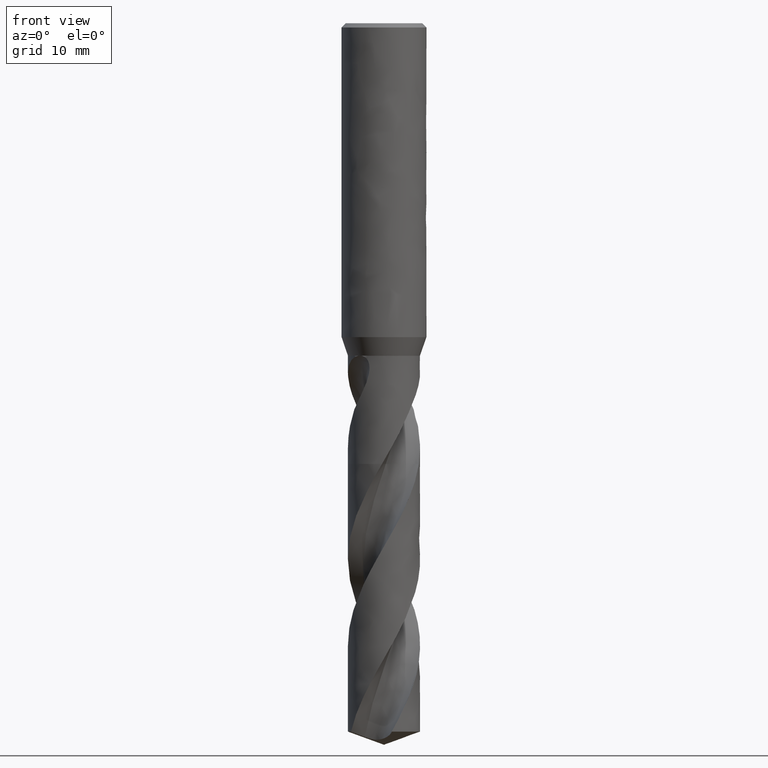
[diagram: clean part render]
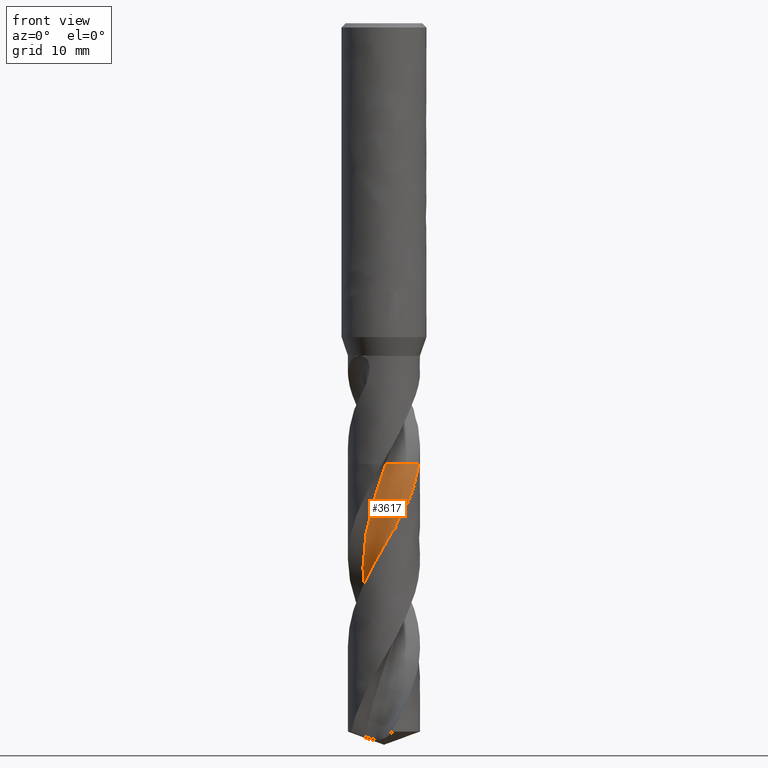
[diagram: same view with one face highlighted and labeled with its STEP entity id]
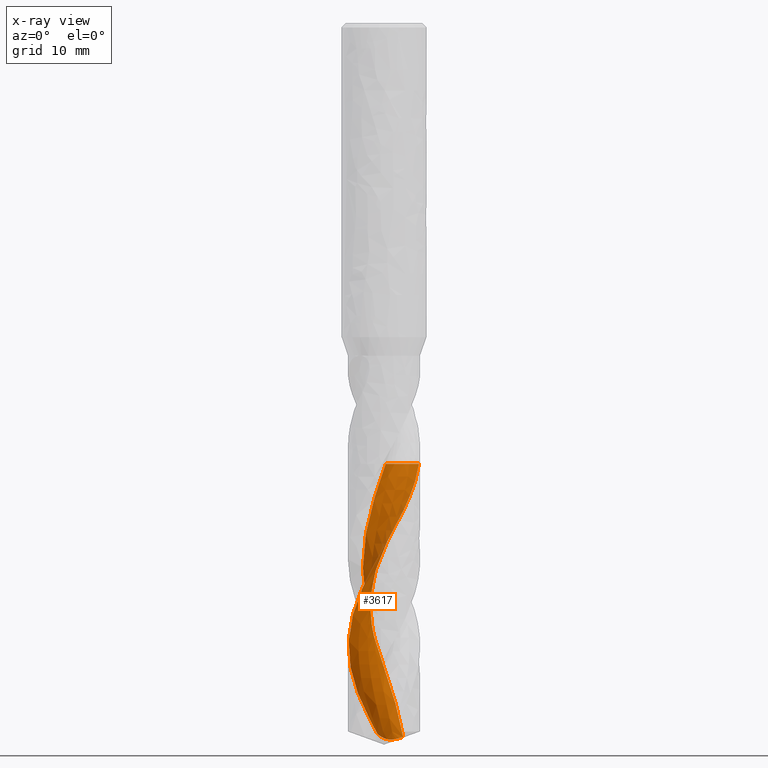
[diagram: x-ray of the same camera — body ghosted, the highlighted face saturated]
A machine part, front view. The second image highlights one B-rep face of the part: STEP entity #3617.
The next image is the same camera in x-ray: the body ghosted, the highlighted face saturated — about 0% of this face is hidden behind the body in this view.
In plain terms, the highlighted face is a freeform B-spline surface patch.
Its self-contained STEP definition (entity closure, byte-faithful):
#2025 = VERTEX_POINT('', #2026);
#2026 = CARTESIAN_POINT('', (0.257106836746543, -3.04252204616227, -62.3));
#2032 = EDGE_CURVE('', #2025, #2033, #2035, .T.);
#2033 = VERTEX_POINT('', #2034);
#2034 = CARTESIAN_POINT('', (4.93343042311955, -1.29277386276117, -62.3));
#2035 = B_SPLINE_CURVE_WITH_KNOTS('', 3, (#2036, #2037, #2038, #2039, #2040, #2041, #2042, #2043, #2044, #2045, #2046, #2047, #2048, #2049, #2050, #2051, #2052, #2053, #2054, #2055, #2056, #2057, #2058, #2059, #2060, #2061, #2062, #2063, #2064, #2065, #2066, #2067, #2068, #2069, #2070, #2071, #2072, #2073, #2074, #2075, #2076, #2077, #2078, #2079, #2080, #2081, #2082, #2083, #2084, #2085, #2086, #2087, #2088, #2089, #2090, #2091, #2092, #2093, #2094, #2095, #2096, #2097, #2098, #2099, #2100, #2101, #2102), .UNSPECIFIED., .F., .U., (4, 3, 3, 3, 3, 3, 3, 3, 3, 3, 3, 3, 3, 3, 3, 3, 3, 3, 3, 3, 3, 3, 4), (0., 0.29734054172853, 0.594310962744745, 0.89092039328541, 1.18717597400073, 1.48308300696472, 1.77864506597677, 2.07386407108344, 2.36874033060282, 2.66327255253617, 2.85970218875943, 2.91802373459071, 2.95693453692255, 3.25424925337456, 3.55119454547453, 3.84777940066535, 4.14401082863885, 4.43989400934541, 4.73543240069405, 5.03062781074815, 5.32548043759606, 5.61998887869164, 5.83731489464803), .UNSPECIFIED.);
#2036 = CARTESIAN_POINT('', (0.257106836746543, -3.04252204616227, -62.3));
#2037 = CARTESIAN_POINT('', (0.282455349133685, -2.94670481619161, -62.3));
#2038 = CARTESIAN_POINT('', (0.312499809202888, -2.85200912345213, -62.3));
#2039 = CARTESIAN_POINT('', (0.347027850009597, -2.75910431713114, -62.3));
#2040 = CARTESIAN_POINT('', (0.381512911332298, -2.66631515596534, -62.3));
#2041 = CARTESIAN_POINT('', (0.420551471555258, -2.57509420010253, -62.3));
#2042 = CARTESIAN_POINT('', (0.463868274961171, -2.48608463641987, -62.3));
#2043 = CARTESIAN_POINT('', (0.507132423448094, -2.39718327073422, -62.3));
#2044 = CARTESIAN_POINT('', (0.554765893278711, -2.31027934986924, -62.3));
#2045 = CARTESIAN_POINT('', (0.606433641756792, -2.22598413569739, -62.3));
#2046 = CARTESIAN_POINT('', (0.658039751521156, -2.14178948423103, -62.3));
#2047 = CARTESIAN_POINT('', (0.713791275437525, -2.06000025682434, -62.3));
#2048 = CARTESIAN_POINT('', (0.773297003756185, -1.98119037040254, -62.3));
#2049 = CARTESIAN_POINT('', (0.832732722970725, -1.90247320462629, -62.3));
#2050 = CARTESIAN_POINT('', (0.896052571961794, -1.82654456302001, -62.3));
#2051 = CARTESIAN_POINT('', (0.962813276909087, -1.7539359878974, -62.3));
#2052 = CARTESIAN_POINT('', (1.02949615097825, -1.68141206120932, -62.3));
#2053 = CARTESIAN_POINT('', (1.09976717682972, -1.61203150736291, -62.3));
#2054 = CARTESIAN_POINT('', (1.17313556292305, -1.54627889860522, -62.3));
#2055 = CARTESIAN_POINT('', (1.24641879156598, -1.48060260779341, -62.3));
#2056 = CARTESIAN_POINT('', (1.32296248970853, -1.41839319241068, -62.3));
#2057 = CARTESIAN_POINT('', (1.40223329392419, -1.36008413330205, -62.3));
#2058 = CARTESIAN_POINT('', (1.48141206572365, -1.30184277028467, -62.3));
#2059 = CARTESIAN_POINT('', (1.5634951873458, -1.2473576505628, -62.3));
#2060 = CARTESIAN_POINT('', (1.6479120211653, -1.19700755187685, -62.3));
#2061 = CARTESIAN_POINT('', (1.73223036430339, -1.14671619758231, -62.3));
#2062 = CARTESIAN_POINT('', (1.81907201391097, -1.1004338624495, -62.3));
#2063 = CARTESIAN_POINT('', (1.90783465679909, -1.05848154983327, -62.3));
#2064 = CARTESIAN_POINT('', (1.96703230090837, -1.03050268405133, -62.3));
#2065 = CARTESIAN_POINT('', (2.02715931807455, -1.00441132557336, -62.3));
#2066 = CARTESIAN_POINT('', (2.08803004308001, -0.980288041471816, -62.3));
#2067 = CARTESIAN_POINT('', (2.10610305307201, -0.973125643544601, -62.3));
#2068 = CARTESIAN_POINT('', (2.12424514218854, -0.966135158626277, -62.3));
#2069 = CARTESIAN_POINT('', (2.14245136848352, -0.959318490940745, -62.3));
#2070 = CARTESIAN_POINT('', (2.15459814653056, -0.954770566068505, -62.3));
#2071 = CARTESIAN_POINT('', (2.16677408561287, -0.950299778090999, -62.3));
#2072 = CARTESIAN_POINT('', (2.17897770930371, -0.945906669125832, -62.3));
#2073 = CARTESIAN_POINT('', (2.27222474354336, -0.912339231086841, -62.3));
#2074 = CARTESIAN_POINT('', (2.36721612646065, -0.883272781772682, -62.3));
#2075 = CARTESIAN_POINT('', (2.46328053522868, -0.858912739509958, -62.3));
#2076 = CARTESIAN_POINT('', (2.55922558047382, -0.834582965486007, -62.3));
#2077 = CARTESIAN_POINT('', (2.65646657875675, -0.814890675235726, -62.3));
#2078 = CARTESIAN_POINT('', (2.75431801250251, -0.799974693033812, -62.3));
#2079 = CARTESIAN_POINT('', (2.85205067262473, -0.785076816087866, -62.3));
#2080 = CARTESIAN_POINT('', (2.9506215255196, -0.774908687459045, -62.3));
#2081 = CARTESIAN_POINT('', (3.04933736152406, -0.769541815557939, -62.3));
#2082 = CARTESIAN_POINT('', (3.14793556217858, -0.764181339123657, -62.3));
#2083 = CARTESIAN_POINT('', (3.24690911937936, -0.763598113075525, -62.3));
#2084 = CARTESIAN_POINT('', (3.34556364639373, -0.767796229258291, -62.3));
#2085 = CARTESIAN_POINT('', (3.44410219594535, -0.771989410169681, -62.3));
#2086 = CARTESIAN_POINT('', (3.54255250401705, -0.780962460817529, -62.3));
#2087 = CARTESIAN_POINT('', (3.64022547513594, -0.794652575013611, -62.3));
#2088 = CARTESIAN_POINT('', (3.73778462903507, -0.808326736272888, -62.3));
#2089 = CARTESIAN_POINT('', (3.83479548098508, -0.826738796225771, -62.3));
#2090 = CARTESIAN_POINT('', (3.93058058970411, -0.849760180705084, -62.3));
#2091 = CARTESIAN_POINT('', (4.02625453689033, -0.872754848167312, -62.3));
#2092 = CARTESIAN_POINT('', (4.12092790376476, -0.900401554595998, -62.3));
#2093 = CARTESIAN_POINT('', (4.21394110298851, -0.93250768597387, -62.3));
#2094 = CARTESIAN_POINT('', (4.30684629456186, -0.964576535462263, -62.3));
#2095 = CARTESIAN_POINT('', (4.39831055997301, -1.00116877948838, -62.3));
#2096 = CARTESIAN_POINT('', (4.4876981461084, -1.04203007136319, -62.3));
#2097 = CARTESIAN_POINT('', (4.57698138881666, -1.08284366525873, -62.3));
#2098 = CARTESIAN_POINT('', (4.66439930997172, -1.12801071992075, -62.3));
#2099 = CARTESIAN_POINT('', (4.74934569723577, -1.17721801781404, -62.3));
#2100 = CARTESIAN_POINT('', (4.81203001231111, -1.21352945923604, -62.3));
#2101 = CARTESIAN_POINT('', (4.87348164675334, -1.25210460721349, -62.3));
#2102 = CARTESIAN_POINT('', (4.93343042311953, -1.2927738627612, -62.3));
#2369 = VERTEX_POINT('', #2370);
#2370 = CARTESIAN_POINT('', (2.71820586783196, 1.39123076832966, -100.888598775299));
#2401 = EDGE_CURVE('', #2369, #2025, #2402, .T.);
#2402 = (
   BOUNDED_CURVE ()
   B_SPLINE_CURVE (3, (#2403, #2404, #2405, #2406, #2407, #2408, #2409, #2410, #2411, #2412, #2413, #2414, #2415, #2416, #2417, #2418, #2419, #2420, #2421, #2422, #2423, #2424, #2425, #2426, #2427, #2428, #2429, #2430, #2431, #2432, #2433, #2434, #2435, #2436, #2437, #2438, #2439, #2440, #2441, #2442, #2443, #2444, #2445, #2446), .UNSPECIFIED., .F., .U.)
   B_SPLINE_CURVE_WITH_KNOTS ((4, 1, 1, 1, 1, 1, 1, 1, 1, 1, 1, 1, 1, 1, 1, 1, 1, 1, 1, 1, 1, 1, 1, 1, 1, 1, 1, 1, 1, 1, 1, 1, 1, 1, 1, 1, 1, 1, 1, 1, 1, 4), (1.16140122470107, 1.89896551724138, 2.84844827586207, 3.79793103448276, 4.74741379310345, 5.69689655172414, 6.64637931034483, 7.59586206896552, 8.54534482758621, 9.4948275862069, 10.4443103448276, 11.3937931034483, 12.343275862069, 13.2927586206897, 14.2422413793103, 15.191724137931, 16.1412068965517, 17.0906896551724, 18.0401724137931, 18.9896551724138, 19.9391379310345, 20.8886206896552, 21.8381034482759, 22.7875862068966, 23.7370689655172, 24.6865517241379, 25.6360344827586, 26.5855172413793, 27.535, 28.4844827586207, 29.4339655172414, 30.3834482758621, 31.3329310344828, 32.2824137931035, 33.2318965517241, 34.1813793103448, 35.1308620689655, 36.0803448275862, 37.0298275862069, 37.9793103448276, 38.9287931034483, 39.75), .UNSPECIFIED.)
   CURVE ()
   GEOMETRIC_REPRESENTATION_ITEM ()
   RATIONAL_B_SPLINE_CURVE ((1., 1., 1., 1., 1., 1., 1., 1., 1., 1., 1., 1., 1., 1., 1., 1., 1., 1., 1., 1., 1., 1., 1., 1., 1., 1., 1., 1., 1., 1., 1., 1., 1., 1., 1., 1., 1., 1., 1., 1., 1., 1., 1., 1.))
   REPRESENTATION_ITEM ('')
);
#2403 = CARTESIAN_POINT('', (2.71820586783196, 1.39123076832966, -100.888598775299));
#2404 = CARTESIAN_POINT('', (2.67800368655246, 1.46514663058447, -100.642744011119));
#2405 = CARTESIAN_POINT('', (2.57924375892695, 1.63028681439311, -100.080394994065));
#2406 = CARTESIAN_POINT('', (2.40177920092845, 1.87239547549262, -99.2015517241379));
#2407 = CARTESIAN_POINT('', (2.18418617659598, 2.11179588618221, -98.2520689655172));
#2408 = CARTESIAN_POINT('', (1.94322415103394, 2.32652181599723, -97.3025862068965));
#2409 = CARTESIAN_POINT('', (1.68163054986733, 2.5143463363471, -96.3531034482759));
#2410 = CARTESIAN_POINT('', (1.40234772836616, 2.67333854485627, -95.4036206896552));
#2411 = CARTESIAN_POINT('', (1.1084934409964, 2.80188332706552, -94.4541379310345));
#2412 = CARTESIAN_POINT('', (0.803327153716365, 2.89869623241293, -93.5046551724138));
#2413 = CARTESIAN_POINT('', (0.490215797153581, 2.96283537528058, -92.5551724137931));
#2414 = CARTESIAN_POINT('', (0.172598426826535, 2.99370972143241, -91.6056896551724));
#2415 = CARTESIAN_POINT('', (-0.146049627894983, 2.99108384550682, -90.6562068965517));
#2416 = CARTESIAN_POINT('', (-0.462252838866228, 2.95507909318309, -89.706724137931));
#2417 = CARTESIAN_POINT('', (-0.772571411640423, 2.88617116470714, -88.7572413793104));
#2418 = CARTESIAN_POINT('', (-1.07363673334712, 2.78518415620212, -87.8077586206897));
#2419 = CARTESIAN_POINT('', (-1.36218599456435, 2.65328113123384, -86.858275862069));
#2420 = CARTESIAN_POINT('', (-1.63509565452084, 2.4919513257862, -85.9087931034483));
#2421 = CARTESIAN_POINT('', (-1.88941343058823, 2.30299412061868, -84.9593103448276));
#2422 = CARTESIAN_POINT('', (-2.12238850786663, 2.08849994415288, -84.0098275862069));
#2423 = CARTESIAN_POINT('', (-2.3314996819376, 1.85082829675762, -83.0603448275862));
#2424 = CARTESIAN_POINT('', (-2.5144811675794, 1.59258311324994, -82.1108620689655));
#2425 = CARTESIAN_POINT('', (-2.66934582819677, 1.31658570443565, -81.1613793103448));
#2426 = CARTESIAN_POINT('', (-2.79440560474272, 1.02584554038767, -80.2118965517242));
#2427 = CARTESIAN_POINT('', (-2.88828894880416, 0.723529157737972, -79.2624137931035));
#2428 = CARTESIAN_POINT('', (-2.94995509208006, 0.412927490389304, -78.3129310344828));
#2429 = CARTESIAN_POINT('', (-2.97870501348361, 0.0974219376016614, -77.3634482758621));
#2430 = CARTESIAN_POINT('', (-2.97418899531812, -0.219550504739886, -76.4139655172414));
#2431 = CARTESIAN_POINT('', (-2.93641069117697, -0.534532714809717, -75.4644827586207));
#2432 = CARTESIAN_POINT('', (-2.86572766014901, -0.844083176437814, -74.515));
#2433 = CARTESIAN_POINT('', (-2.76284835434865, -1.1448116272889, -73.5655172413793));
#2434 = CARTESIAN_POINT('', (-2.62882557937912, -1.43341427915248, -72.6160344827586));
#2435 = CARTESIAN_POINT('', (-2.46504648019532, -1.70670826807482, -71.6665517241379));
#2436 = CARTESIAN_POINT('', (-2.27321913629262, -1.9616649996595, -70.7170689655173));
#2437 = CARTESIAN_POINT('', (-2.05535588519287, -2.1954420564562, -69.7675862068966));
#2438 = CARTESIAN_POINT('', (-1.81375351199637, -2.40541337233901, -68.8181034482759));
#2439 = CARTESIAN_POINT('', (-1.5509705180985, -2.58919729471313, -67.8686206896552));
#2440 = CARTESIAN_POINT('', (-1.26980154119252, -2.74468254022137, -66.9191379310345));
#2441 = CARTESIAN_POINT('', (-0.973249658448007, -2.87005069749879, -65.9696551724138));
#2442 = CARTESIAN_POINT('', (-0.664494968403497, -2.96379907324804, -65.0201724137931));
#2443 = CARTESIAN_POINT('', (-0.346866683593951, -3.02474859333156, -64.0706896551724));
#2444 = CARTESIAN_POINT('', (-0.03834225961307, -3.05086140602041, -63.1639655172414));
#2445 = CARTESIAN_POINT('', (0.163588209232107, -3.04805946740081, -62.5737356321839));
#2446 = CARTESIAN_POINT('', (0.257106836746543, -3.04252204616227, -62.3));
#3476 = EDGE_CURVE('', #2033, #3477, #3479, .T.);
#3477 = VERTEX_POINT('', #3478);
#3478 = CARTESIAN_POINT('', (4.38259217942669, -2.60823422813749, -64.7830305454495));
#3479 = B_SPLINE_CURVE_WITH_KNOTS('', 3, (#3480, #3481, #3482, #3483, #3484, #3485, #3486, #3487, #3488, #3489), .UNSPECIFIED., .F., .U., (4, 3, 3, 4), (6.15313403050177, 6.99093554378073, 7.9897139852568, 9.01862295335219), .UNSPECIFIED.);
#3480 = CARTESIAN_POINT('', (4.93343042311955, -1.29277386276117, -62.3));
#3481 = CARTESIAN_POINT('', (4.89807279944451, -1.4277041714194, -62.5419376016739));
#3482 = CARTESIAN_POINT('', (4.85717051336691, -1.56119811757835, -62.7839725517205));
#3483 = CARTESIAN_POINT('', (4.81088733681891, -1.69273832367423, -63.025933694467));
#3484 = CARTESIAN_POINT('', (4.75571121430482, -1.84955293901396, -63.314385755271));
#3485 = CARTESIAN_POINT('', (4.69284486821146, -2.00370485301787, -63.6029286116004));
#3486 = CARTESIAN_POINT('', (4.62263348857608, -2.15435828735457, -63.8913965029752));
#3487 = CARTESIAN_POINT('', (4.55030401572279, -2.30955654076733, -64.1885667142228));
#3488 = CARTESIAN_POINT('', (4.47013736388259, -2.46113285334384, -64.4858349681421));
#3489 = CARTESIAN_POINT('', (4.38259217942671, -2.60823422813745, -64.7830305454494));
#3617 = ADVANCED_FACE('', (#3618), #3801, .T.);
#3618 = FACE_OUTER_BOUND('', #3619, .T.);
#3619 = EDGE_LOOP('', (#3620, #3621, #3622, #3745, #3757, #3800));
#3620 = ORIENTED_EDGE('', *, *, #2032, .F.);
#3621 = ORIENTED_EDGE('', *, *, #2401, .F.);
#3622 = ORIENTED_EDGE('', *, *, #3623, .T.);
#3623 = EDGE_CURVE('', #2369, #3624, #3626, .T.);
#3624 = VERTEX_POINT('', #3625);
#3625 = CARTESIAN_POINT('', (-1.08917575655193, 4.98233842400731, -100.143751805242));
#3626 = B_SPLINE_CURVE_WITH_KNOTS('', 3, (#3627, #3628, #3629, #3630, #3631, #3632, #3633, #3634, #3635, #3636, #3637, #3638, #3639, #3640, #3641, #3642, #3643, #3644, #3645, #3646, #3647, #3648, #3649, #3650, #3651, #3652, #3653, #3654, #3655, #3656, #3657, #3658, #3659, #3660, #3661, #3662, #3663, #3664, #3665, #3666, #3667, #3668, #3669, #3670, #3671, #3672, #3673, #3674, #3675, #3676, #3677, #3678, #3679, #3680, #3681, #3682, #3683, #3684, #3685, #3686, #3687, #3688, #3689, #3690, #3691, #3692, #3693, #3694, #3695, #3696, #3697, #3698, #3699, #3700, #3701, #3702, #3703, #3704, #3705, #3706, #3707, #3708, #3709, #3710, #3711, #3712, #3713, #3714, #3715, #3716, #3717, #3718, #3719, #3720, #3721, #3722, #3723, #3724, #3725, #3726, #3727, #3728, #3729, #3730, #3731, #3732, #3733, #3734, #3735, #3736, #3737, #3738, #3739, #3740, #3741, #3742, #3743, #3744), .UNSPECIFIED., .F., .U., (4, 3, 3, 3, 3, 3, 3, 3, 3, 3, 3, 3, 3, 3, 3, 3, 3, 3, 3, 3, 3, 3, 3, 3, 3, 3, 3, 3, 3, 3, 3, 3, 3, 3, 3, 3, 3, 3, 3, 4), (0., 0.197306370533849, 0.394423993291476, 0.591284577874752, 0.722422164479544, 0.853452057676071, 0.984370018182084, 1.11518034835664, 1.24589873893394, 1.376553859752, 1.50718636764504, 1.63784435202514, 1.7685754697309, 1.89941778367478, 2.03039249273984, 2.16150121680052, 2.29272839484124, 2.42404711866026, 2.55542579202223, 2.68683356108203, 2.81824366471131, 2.94963484062096, 2.98857061384949, 3.12048463178685, 3.15945341035336, 3.18542764120954, 3.38428003435633, 3.5826649173692, 3.78066170837731, 3.97833639700477, 4.17574201147587, 4.37292035445424, 4.56990398827049, 4.76671805383818, 4.96338179224605, 5.15990976010026, 5.35631277476367, 5.55259863665361, 5.84619914615227, 6.08548079583742), .UNSPECIFIED.);
#3627 = CARTESIAN_POINT('', (2.71820586783196, 1.39123076832967, -100.888598775299));
#3628 = CARTESIAN_POINT('', (2.65804491942693, 1.37628190890162, -100.910569793716));
#3629 = CARTESIAN_POINT('', (2.59713375919126, 1.36381666360219, -100.932338706397));
#3630 = CARTESIAN_POINT('', (2.53573183960258, 1.35395796135124, -100.953743005549));
#3631 = CARTESIAN_POINT('', (2.47438865849127, 1.34410869015981, -100.975126828861));
#3632 = CARTESIAN_POINT('', (2.41245445699548, 1.33684529968187, -100.996182347865));
#3633 = CARTESIAN_POINT('', (2.35020709891111, 1.33226527895114, -101.0167140729));
#3634 = CARTESIAN_POINT('', (2.28804091036935, 1.32769123049296, -101.037219024899));
#3635 = CARTESIAN_POINT('', (2.22545389893127, 1.3257863193162, -101.057237528091));
#3636 = CARTESIAN_POINT('', (2.1627413301067, 1.32661462166762, -101.076536688701));
#3637 = CARTESIAN_POINT('', (2.12096570019658, 1.32716639068514, -101.089392717506));
#3638 = CARTESIAN_POINT('', (2.0790921219578, 1.32893033166776, -101.101941970002));
#3639 = CARTESIAN_POINT('', (2.0372123010788, 1.33191485552586, -101.114105785215));
#3640 = CARTESIAN_POINT('', (1.99536687293771, 1.33489692841964, -101.126259611205));
#3641 = CARTESIAN_POINT('', (1.95347944592679, 1.3391002808034, -101.138038937738));
#3642 = CARTESIAN_POINT('', (1.91164498109037, 1.34452282819898, -101.149358020422));
#3643 = CARTESIAN_POINT('', (1.8698462534746, 1.34994074336672, -101.160667433746));
#3644 = CARTESIAN_POINT('', (1.82806327116222, 1.35658075342116, -101.171527264507));
#3645 = CARTESIAN_POINT('', (1.78639405607998, 1.36442818440315, -101.181846402369));
#3646 = CARTESIAN_POINT('', (1.74475909811124, 1.37226916385171, -101.192157056656));
#3647 = CARTESIAN_POINT('', (1.7031993696939, 1.38132297593797, -101.201937125291));
#3648 = CARTESIAN_POINT('', (1.66181549859938, 1.39156013086586, -101.211093333448));
#3649 = CARTESIAN_POINT('', (1.62046071401841, 1.4017900906441, -101.220243106195));
#3650 = CARTESIAN_POINT('', (1.57924221441911, 1.41321160887116, -101.228778203828));
#3651 = CARTESIAN_POINT('', (1.53826225625986, 1.42577838329581, -101.23660813588));
#3652 = CARTESIAN_POINT('', (1.49730213304559, 1.43833907520377, -101.244434278123));
#3653 = CARTESIAN_POINT('', (1.45654043406463, 1.45205623330068, -101.251563083231));
#3654 = CARTESIAN_POINT('', (1.41607924692095, 1.46686557947521, -101.257913420084));
#3655 = CARTESIAN_POINT('', (1.3756250625322, 1.48167236254594, -101.264262657862));
#3656 = CARTESIAN_POINT('', (1.33543145089596, 1.49758551362077, -101.26983946748));
#3657 = CARTESIAN_POINT('', (1.29559752899514, 1.51452320063263, -101.274579520698));
#3658 = CARTESIAN_POINT('', (1.25575583851962, 1.53146419090163, -101.279320498341));
#3659 = CARTESIAN_POINT('', (1.21623499955588, 1.54944652567604, -101.283228657359));
#3660 = CARTESIAN_POINT('', (1.177127496459, 1.56837344443148, -101.286263334971));
#3661 = CARTESIAN_POINT('', (1.13799810367989, 1.58731095717027, -101.289299711185));
#3662 = CARTESIAN_POINT('', (1.09924531693131, 1.60721180230021, -101.291464360335));
#3663 = CARTESIAN_POINT('', (1.06095107279178, 1.62796920444921, -101.292744778359));
#3664 = CARTESIAN_POINT('', (1.02262425663754, 1.64874426226483, -101.294026285472));
#3665 = CARTESIAN_POINT('', (0.984722280409442, 1.67039561231516, -101.294423336147));
#3666 = CARTESIAN_POINT('', (0.947313311816773, 1.69281295692677, -101.293952322729));
#3667 = CARTESIAN_POINT('', (0.909866490294262, 1.71525298492701, -101.293480832707));
#3668 = CARTESIAN_POINT('', (0.872882661733674, 1.73847869434262, -101.292139510622));
#3669 = CARTESIAN_POINT('', (0.836414579848255, 1.76238299117098, -101.2899703637));
#3670 = CARTESIAN_POINT('', (0.799909183355543, 1.78631174718125, -101.287798997278));
#3671 = CARTESIAN_POINT('', (0.763893511461103, 1.81093781906069, -101.284797034115));
#3672 = CARTESIAN_POINT('', (0.728405210403211, 1.83616285789275, -101.281025817684));
#3673 = CARTESIAN_POINT('', (0.692884846410259, 1.86141068701788, -101.277251194038));
#3674 = CARTESIAN_POINT('', (0.657869772890749, 1.88727461638721, -101.272704041637));
#3675 = CARTESIAN_POINT('', (0.623384506932965, 1.9136685079036, -101.267457534243));
#3676 = CARTESIAN_POINT('', (0.588875183607195, 1.9400808121404, -101.262207366817));
#3677 = CARTESIAN_POINT('', (0.554877203251019, 1.96703829995371, -101.256254439765));
#3678 = CARTESIAN_POINT('', (0.521404892399508, 1.99446830979652, -101.249676717076));
#3679 = CARTESIAN_POINT('', (0.487917300789254, 2.02191084197054, -101.243095991529));
#3680 = CARTESIAN_POINT('', (0.454940043743814, 2.04983916745562, -101.235887164759));
#3681 = CARTESIAN_POINT('', (0.422480392023448, 2.07819362858801, -101.228127470385));
#3682 = CARTESIAN_POINT('', (0.390013551646095, 2.10655436922386, -101.220366057514));
#3683 = CARTESIAN_POINT('', (0.358051572372302, 2.13535271985077, -101.212050677384));
#3684 = CARTESIAN_POINT('', (0.326597455067586, 2.16454050037239, -101.203254153295));
#3685 = CARTESIAN_POINT('', (0.295142778954036, 2.19372879943947, -101.194457472928));
#3686 = CARTESIAN_POINT('', (0.264185296200991, 2.22331646018133, -101.185176780856));
#3687 = CARTESIAN_POINT('', (0.233725920127187, 2.25326481666385, -101.175478461903));
#3688 = CARTESIAN_POINT('', (0.203270931284767, 2.28320885951994, -101.165781539853));
#3689 = CARTESIAN_POINT('', (0.173305006718913, 2.31352227303973, -101.155664336539));
#3690 = CARTESIAN_POINT('', (0.143828521566361, 2.34417392635258, -101.145186010459));
#3691 = CARTESIAN_POINT('', (0.135093614267387, 2.3532570768321, -101.142080918163));
#3692 = CARTESIAN_POINT('', (0.1264012449006, 2.36237042394274, -101.138943914069));
#3693 = CARTESIAN_POINT('', (0.117751428553633, 2.3715132602754, -101.135776415485));
#3694 = CARTESIAN_POINT('', (0.088445935580588, 2.40248910012597, -101.125044961339));
#3695 = CARTESIAN_POINT('', (0.0596243119012267, 2.43380792260671, -101.113962302656));
#3696 = CARTESIAN_POINT('', (0.0312876899316708, 2.46544547114779, -101.10257897895));
#3697 = CARTESIAN_POINT('', (0.022916755863247, 2.47479153339926, -101.099216226243));
#3698 = CARTESIAN_POINT('', (0.0145877859703012, 2.48416584243972, -101.095827046618));
#3699 = CARTESIAN_POINT('', (0.00630082851640587, 2.49356784335509, -101.09241263049));
#3700 = CARTESIAN_POINT('', (0.000777243895055168, 2.49983464850705, -101.090136787212));
#3701 = CARTESIAN_POINT('', (-0.00472773335828877, 2.5061138225873, -101.087849707203));
#3702 = CARTESIAN_POINT('', (-0.0102140864737527, 2.51240520805958, -101.085551730955));
#3703 = CARTESIAN_POINT('', (-0.0522162713584245, 2.56057052484215, -101.067958983783));
#3704 = CARTESIAN_POINT('', (-0.0931383027595578, 2.60946321167423, -101.049725275422));
#3705 = CARTESIAN_POINT('', (-0.132968405922925, 2.65902118734297, -101.030986119664));
#3706 = CARTESIAN_POINT('', (-0.172704866879782, 2.70846265017786, -101.01229102043));
#3707 = CARTESIAN_POINT('', (-0.211371709476282, 2.75858798767942, -100.993084391983));
#3708 = CARTESIAN_POINT('', (-0.248949197787302, 2.809345768983, -100.973474921787));
#3709 = CARTESIAN_POINT('', (-0.286453174838033, 2.86000425497332, -100.953903812772));
#3710 = CARTESIAN_POINT('', (-0.322887062730069, 2.91131326157419, -100.933923254649));
#3711 = CARTESIAN_POINT('', (-0.358223310557292, 2.96322699226685, -100.913621211388));
#3712 = CARTESIAN_POINT('', (-0.393502073162202, 3.0150562693875, -100.893352195614));
#3713 = CARTESIAN_POINT('', (-0.427700294787377, 3.06750841378426, -100.872754666189));
#3714 = CARTESIAN_POINT('', (-0.460783181429736, 3.12053991661194, -100.851900880502));
#3715 = CARTESIAN_POINT('', (-0.493821035752201, 3.17349923312694, -100.831075480922));
#3716 = CARTESIAN_POINT('', (-0.525759070536293, 3.22705653480642, -100.809986408632));
#3717 = CARTESIAN_POINT('', (-0.556555909696756, 3.28116828421294, -100.788694166723));
#3718 = CARTESIAN_POINT('', (-0.587317292704537, 3.33521773519855, -100.7674264384));
#3719 = CARTESIAN_POINT('', (-0.616951793745721, 3.38984106709705, -100.745947727604));
#3720 = CARTESIAN_POINT('', (-0.645412072551519, 3.4449930086977, -100.724309844796));
#3721 = CARTESIAN_POINT('', (-0.673844247474526, 3.50009048900114, -100.70269332891));
#3722 = CARTESIAN_POINT('', (-0.701115555992851, 3.5557370889883, -100.680909399084));
#3723 = CARTESIAN_POINT('', (-0.727173234972133, 3.61188444298968, -100.659003539809));
#3724 = CARTESIAN_POINT('', (-0.753208482874779, 3.66798346399865, -100.637116537625));
#3725 = CARTESIAN_POINT('', (-0.77804264464324, 3.72460507015013, -100.615098887729));
#3726 = CARTESIAN_POINT('', (-0.80161801082565, 3.78169661700834, -100.592991591584));
#3727 = CARTESIAN_POINT('', (-0.825175370074309, 3.83874455717582, -100.570901181057));
#3728 = CARTESIAN_POINT('', (-0.847485735324048, 3.89628582547131, -100.54871187285));
#3729 = CARTESIAN_POINT('', (-0.86848689452755, 3.95426238440181, -100.526461641029));
#3730 = CARTESIAN_POINT('', (-0.889473555181216, 4.01219891811176, -100.504226770079));
#3731 = CARTESIAN_POINT('', (-0.90916207886537, 4.07059592262063, -100.481921127067));
#3732 = CARTESIAN_POINT('', (-0.927486203102709, 4.12938885569412, -100.459580830707));
#3733 = CARTESIAN_POINT('', (-0.945798676795767, 4.18814440800872, -100.437254738389));
#3734 = CARTESIAN_POINT('', (-0.962757042209436, 4.24732310585609, -100.414883477756));
#3735 = CARTESIAN_POINT('', (-0.97829149374404, 4.30685275144798, -100.392502277387));
#3736 = CARTESIAN_POINT('', (-0.993816679106815, 4.36634688809874, -100.370134427218));
#3737 = CARTESIAN_POINT('', (-1.00792736557097, 4.42622148114559, -100.347745381594));
#3738 = CARTESIAN_POINT('', (-1.02055081813014, 4.48639546426674, -100.325370292804));
#3739 = CARTESIAN_POINT('', (-1.03943272876457, 4.57640251792217, -100.291902077592));
#3740 = CARTESIAN_POINT('', (-1.05500533354808, 4.66717397637574, -100.258430714473));
#3741 = CARTESIAN_POINT('', (-1.06701619941008, 4.75839456171603, -100.225077129991));
#3742 = CARTESIAN_POINT('', (-1.07680494195183, 4.83273847952032, -100.19789427281));
#3743 = CARTESIAN_POINT('', (-1.08423763247139, 4.9074533868292, -100.170762755928));
#3744 = CARTESIAN_POINT('', (-1.08917575655193, 4.98233842400731, -100.143751805242));
#3745 = ORIENTED_EDGE('', *, *, #3746, .F.);
#3746 = EDGE_CURVE('', #3747, #3624, #3749, .T.);
#3747 = VERTEX_POINT('', #3748);
#3748 = CARTESIAN_POINT('', (-2.03612363862959, 4.67591707884281, -98.3845980071975));
#3749 = B_SPLINE_CURVE_WITH_KNOTS('', 3, (#3750, #3751, #3752, #3753, #3754, #3755, #3756), .UNSPECIFIED., .F., .U., (4, 3, 4), (0., 0.996305478807861, 2.0217887496594), .UNSPECIFIED.);
#3750 = CARTESIAN_POINT('', (-2.03612363862961, 4.6759170788428, -98.3845980071975));
#3751 = CARTESIAN_POINT('', (-1.88596879716354, 4.74130186155143, -98.6735097182544));
#3752 = CARTESIAN_POINT('', (-1.73263819193815, 4.79945555111464, -98.9625148271073));
#3753 = CARTESIAN_POINT('', (-1.57692810990467, 4.85008224014718, -99.2514489575283));
#3754 = CARTESIAN_POINT('', (-1.41665790400425, 4.90219158187598, -99.5488448099322));
#3755 = CARTESIAN_POINT('', (-1.25377817229734, 4.94635512752228, -99.8463338122987));
#3756 = CARTESIAN_POINT('', (-1.08917575655193, 4.98233842400731, -100.143751805242));
#3757 = ORIENTED_EDGE('', *, *, #3758, .T.);
#3758 = EDGE_CURVE('', #3747, #3477, #3759, .T.);
#3759 = (
   BOUNDED_CURVE ()
   B_SPLINE_CURVE (3, (#3760, #3761, #3762, #3763, #3764, #3765, #3766, #3767, #3768, #3769, #3770, #3771, #3772, #3773, #3774, #3775, #3776, #3777, #3778, #3779, #3780, #3781, #3782, #3783, #3784, #3785, #3786, #3787, #3788, #3789, #3790, #3791, #3792, #3793, #3794, #3795, #3796, #3797, #3798, #3799), .UNSPECIFIED., .F., .U.)
   B_SPLINE_CURVE_WITH_KNOTS ((4, 1, 1, 1, 1, 1, 1, 1, 1, 1, 1, 1, 1, 1, 1, 1, 1, 1, 1, 1, 1, 1, 1, 1, 1, 1, 1, 1, 1, 1, 1, 1, 1, 1, 1, 1, 1, 4), (3.66540199280247, 3.79793103448276, 4.74741379310345, 5.69689655172414, 6.64637931034483, 7.59586206896552, 8.54534482758621, 9.4948275862069, 10.4443103448276, 11.3937931034483, 12.343275862069, 13.2927586206897, 14.2422413793103, 15.191724137931, 16.1412068965517, 17.0906896551724, 18.0401724137931, 18.9896551724138, 19.9391379310345, 20.8886206896552, 21.8381034482759, 22.7875862068966, 23.7370689655172, 24.6865517241379, 25.6360344827586, 26.5855172413793, 27.535, 28.4844827586207, 29.4339655172414, 30.3834482758621, 31.3329310344828, 32.2824137931035, 33.2318965517241, 34.1813793103448, 35.1308620689655, 36.0803448275862, 37.0298275862069, 37.2669694545505), .UNSPECIFIED.)
   CURVE ()
   GEOMETRIC_REPRESENTATION_ITEM ()
   RATIONAL_B_SPLINE_CURVE ((1., 1., 1., 1., 1., 1., 1., 1., 1., 1., 1., 1., 1., 1., 1., 1., 1., 1., 1., 1., 1., 1., 1., 1., 1., 1., 1., 1., 1., 1., 1., 1., 1., 1., 1., 1., 1., 1., 1., 1.))
   REPRESENTATION_ITEM ('')
);
#3760 = CARTESIAN_POINT('', (-2.03612363862959, 4.67591707884281, -98.3845980071975));
#3761 = CARTESIAN_POINT('', (-2.05904691755698, 4.66533095297094, -98.3404216599708));
#3762 = CARTESIAN_POINT('', (-2.24553470798336, 4.57754216263704, -97.9797510598704));
#3763 = CARTESIAN_POINT('', (-2.58516082471981, 4.39201269217318, -97.3025862068965));
#3764 = CARTESIAN_POINT('', (-3.03043464658972, 4.08399894735944, -96.3531034482759));
#3765 = CARTESIAN_POINT('', (-3.44005686478465, 3.73167772991226, -95.4036206896552));
#3766 = CARTESIAN_POINT('', (-3.80970768364461, 3.33907248147394, -94.4541379310345));
#3767 = CARTESIAN_POINT('', (-4.13551075183032, 2.91061795094907, -93.5046551724138));
#3768 = CARTESIAN_POINT('', (-4.41407136600379, 2.45111269771692, -92.5551724137931));
#3769 = CARTESIAN_POINT('', (-4.64250956919093, 1.96566782092924, -91.6056896551724));
#3770 = CARTESIAN_POINT('', (-4.81848795062136, 1.45965288434314, -90.6562068965517));
#3771 = CARTESIAN_POINT('', (-4.94023387956998, 0.93863945393983, -89.706724137931));
#3772 = CARTESIAN_POINT('', (-5.00655599235212, 0.40834283827986, -88.7572413793104));
#3773 = CARTESIAN_POINT('', (-5.01685479681468, -0.125437406322135, -87.8077586206897));
#3774 = CARTESIAN_POINT('', (-4.97112731606341, -0.656877624262058, -86.858275862069));
#3775 = CARTESIAN_POINT('', (-4.86996574782864, -1.18019028087983, -85.9087931034483));
#3776 = CARTESIAN_POINT('', (-4.71455017123535, -1.68968367357409, -84.9593103448276));
#3777 = CARTESIAN_POINT('', (-4.50663538733011, -2.17982055992037, -84.0098275862069));
#3778 = CARTESIAN_POINT('', (-4.24853203337416, -2.64527514058798, -83.0603448275862));
#3779 = CARTESIAN_POINT('', (-3.94308216314486, -3.08098785140745, -82.1108620689655));
#3780 = CARTESIAN_POINT('', (-3.59362953591163, -3.48221744013529, -81.1613793103448));
#3781 = CARTESIAN_POINT('', (-3.20398490496828, -3.84458982913732, -80.2118965517242));
#3782 = CARTESIAN_POINT('', (-2.77838664224105, -4.16414329514356, -79.2624137931035));
#3783 = CARTESIAN_POINT('', (-2.32145707819263, -4.43736953117657, -78.3129310344828));
#3784 = CARTESIAN_POINT('', (-1.83815497567433, -4.66125019345111, -77.3634482758621));
#3785 = CARTESIAN_POINT('', (-1.33372459222633, -4.83328857718963, -76.4139655172414));
#3786 = CARTESIAN_POINT('', (-0.813641817308862, -4.95153610957785, -75.4644827586207));
#3787 = CARTESIAN_POINT('', (-0.283557898774315, -5.01461339515181, -74.515));
#3788 = CARTESIAN_POINT('', (0.250758703566054, -5.02172559840996, -73.5655172413793));
#3789 = CARTESIAN_POINT('', (0.783481780776926, -4.97267199996254, -72.6160344827586));
#3790 = CARTESIAN_POINT('', (1.3087875824449, -4.86784961580139, -71.6665517241379));
#3791 = CARTESIAN_POINT('', (1.82091519178653, -4.7082508233795, -70.7170689655173));
#3792 = CARTESIAN_POINT('', (2.31422647358069, -4.49545499457835, -69.7675862068966));
#3793 = CARTESIAN_POINT('', (2.78326504979908, -4.23161418687529, -68.8181034482759));
#3794 = CARTESIAN_POINT('', (3.22281358212355, -3.91943301577548, -67.8686206896552));
#3795 = CARTESIAN_POINT('', (3.62794932955856, -3.56214282590782, -66.9191379310345));
#3796 = CARTESIAN_POINT('', (3.99409543549181, -3.16347055845255, -65.9696551724138));
#3797 = CARTESIAN_POINT('', (4.23630405984913, -2.83660409420073, -65.2576193772188));
#3798 = CARTESIAN_POINT('', (4.35863997865169, -2.64654304782002, -64.8620778348974));
#3799 = CARTESIAN_POINT('', (4.38259217942668, -2.60823422813751, -64.7830305454495));
#3800 = ORIENTED_EDGE('', *, *, #3476, .F.);
#3801 = (
   BOUNDED_SURFACE ()
   B_SPLINE_SURFACE (3, 2, ((#3802, #3803, #3804, #3805, #3806), (#3807, #3808, #3809, #3810, #3811), (#3812, #3813, #3814, #3815, #3816), (#3817, #3818, #3819, #3820, #3821), (#3822, #3823, #3824, #3825, #3826), (#3827, #3828, #3829, #3830, #3831), (#3832, #3833, #3834, #3835, #3836), (#3837, #3838, #3839, #3840, #3841), (#3842, #3843, #3844, #3845, #3846), (#3847, #3848, #3849, #3850, #3851), (#3852, #3853, #3854, #3855, #3856), (#3857, #3858, #3859, #3860, #3861), (#3862, #3863, #3864, #3865, #3866), (#3867, #3868, #3869, #3870, #3871), (#3872, #3873, #3874, #3875, #3876), (#3877, #3878, #3879, #3880, #3881), (#3882, #3883, #3884, #3885, #3886), (#3887, #3888, #3889, #3890, #3891), (#3892, #3893, #3894, #3895, #3896), (#3897, #3898, #3899, #3900, #3901), (#3902, #3903, #3904, #3905, #3906), (#3907, #3908, #3909, #3910, #3911), (#3912, #3913, #3914, #3915, #3916), (#3917, #3918, #3919, #3920, #3921), (#3922, #3923, #3924, #3925, #3926), (#3927, #3928, #3929, #3930, #3931), (#3932, #3933, #3934, #3935, #3936), (#3937, #3938, #3939, #3940, #3941), (#3942, #3943, #3944, #3945, #3946), (#3947, #3948, #3949, #3950, #3951), (#3952, #3953, #3954, #3955, #3956), (#3957, #3958, #3959, #3960, #3961), (#3962, #3963, #3964, #3965, #3966), (#3967, #3968, #3969, #3970, #3971), (#3972, #3973, #3974, #3975, #3976), (#3977, #3978, #3979, #3980, #3981), (#3982, #3983, #3984, #3985, #3986), (#3987, #3988, #3989, #3990, #3991), (#3992, #3993, #3994, #3995, #3996), (#3997, #3998, #3999, #4000, #4001), (#4002, #4003, #4004, #4005, #4006), (#4007, #4008, #4009, #4010, #4011), (#4012, #4013, #4014, #4015, #4016), (#4017, #4018, #4019, #4020, #4021)), .UNSPECIFIED., .F., .F., .U.)
   B_SPLINE_SURFACE_WITH_KNOTS ((4, 1, 1, 1, 1, 1, 1, 1, 1, 1, 1, 1, 1, 1, 1, 1, 1, 1, 1, 1, 1, 1, 1, 1, 1, 1, 1, 1, 1, 1, 1, 1, 1, 1, 1, 1, 1, 1, 1, 1, 1, 4), (3, 2, 3), (0.755576663841191, 1.89896551724138, 2.84844827586207, 3.79793103448276, 4.74741379310345, 5.69689655172414, 6.64637931034483, 7.59586206896552, 8.54534482758621, 9.4948275862069, 10.4443103448276, 11.3937931034483, 12.343275862069, 13.2927586206897, 14.2422413793103, 15.191724137931, 16.1412068965517, 17.0906896551724, 18.0401724137931, 18.9896551724138, 19.9391379310345, 20.8886206896552, 21.8381034482759, 22.7875862068966, 23.7370689655172, 24.6865517241379, 25.6360344827586, 26.5855172413793, 27.535, 28.4844827586207, 29.4339655172414, 30.3834482758621, 31.3329310344828, 32.2824137931035, 33.2318965517241, 34.1813793103448, 35.1308620689655, 36.0803448275862, 37.0298275862069, 37.9793103448276, 38.9287931034483, 39.7500000000062), (0., 0.5, 1.), .UNSPECIFIED.)
   GEOMETRIC_REPRESENTATION_ITEM ()
   RATIONAL_B_SPLINE_SURFACE (((1., 0.887010833178222, 1., 0.887010833178222, 1.), (1., 0.887010833178222, 1., 0.887010833178222, 1.), (1., 0.887010833178221, 1., 0.887010833178221, 1.), (1., 0.887010833178222, 1., 0.887010833178222, 1.), (1., 0.887010833178222, 1., 0.887010833178222, 1.), (1., 0.887010833178222, 1., 0.887010833178222, 1.), (1., 0.887010833178222, 1., 0.887010833178222, 1.), (1., 0.887010833178221, 1., 0.887010833178221, 1.), (1., 0.887010833178222, 1., 0.887010833178222, 1.), (1., 0.887010833178222, 1., 0.887010833178222, 1.), (1., 0.887010833178221, 1., 0.887010833178221, 1.), (1., 0.887010833178222, 1., 0.887010833178222, 1.), (1., 0.887010833178222, 1., 0.887010833178222, 1.), (1., 0.887010833178222, 1., 0.887010833178222, 1.), (1., 0.887010833178222, 1., 0.887010833178222, 1.), (1., 0.887010833178222, 1., 0.887010833178222, 1.), (1., 0.887010833178222, 1., 0.887010833178222, 1.), (1., 0.887010833178222, 1., 0.887010833178222, 1.), (1., 0.887010833178222, 1., 0.887010833178222, 1.), (1., 0.887010833178222, 1., 0.887010833178222, 1.), (1., 0.887010833178222, 1., 0.887010833178222, 1.), (1., 0.887010833178222, 1., 0.887010833178222, 1.), (1., 0.887010833178222, 1., 0.887010833178222, 1.), (1., 0.887010833178222, 1., 0.887010833178222, 1.), (1., 0.887010833178222, 1., 0.887010833178222, 1.), (1., 0.887010833178222, 1., 0.887010833178222, 1.), (1., 0.887010833178222, 1., 0.887010833178222, 1.), (1., 0.887010833178222, 1., 0.887010833178222, 1.), (1., 0.887010833178222, 1., 0.887010833178222, 1.), (1., 0.887010833178222, 1., 0.887010833178222, 1.), (1., 0.887010833178222, 1., 0.887010833178222, 1.), (1., 0.887010833178222, 1., 0.887010833178222, 1.), (1., 0.887010833178222, 1., 0.887010833178222, 1.), (1., 0.887010833178222, 1., 0.887010833178222, 1.), (1., 0.887010833178221, 1., 0.887010833178221, 1.), (1., 0.887010833178222, 1., 0.887010833178222, 1.), (1., 0.887010833178222, 1., 0.887010833178222, 1.), (1., 0.887010833178222, 1., 0.887010833178222, 1.), (1., 0.887010833178222, 1., 0.887010833178222, 1.), (1., 0.887010833178222, 1., 0.887010833178222, 1.), (1., 0.887010833178222, 1., 0.887010833178222, 1.), (1., 0.887010833178222, 1., 0.887010833178222, 1.), (1., 0.887010833178222, 1., 0.887010833178222, 1.), (1., 0.887010833178222, 1., 0.887010833178222, 1.)))
   REPRESENTATION_ITEM ('')
   SURFACE ()
);
#3802 = CARTESIAN_POINT('', (-0.434596424863713, 5.12126589244766, -101.294423336159));
#3803 = CARTESIAN_POINT('', (-0.851412795870133, 3.58175841931036, -101.294423336159));
#3804 = CARTESIAN_POINT('', (0.170601849253823, 2.35729722672944, -101.294423336159));
#3805 = CARTESIAN_POINT('', (1.19261649437778, 1.13283603414852, -101.294423336159));
#3806 = CARTESIAN_POINT('', (2.78183990148175, 1.26769933270439, -101.294423336159));
#3807 = CARTESIAN_POINT('', (-0.652814308908558, 5.09710388995146, -100.913293718359));
#3808 = CARTESIAN_POINT('', (-1.00343303857823, 3.54148156101485, -100.913293718359));
#3809 = CARTESIAN_POINT('', (0.0697515308299425, 2.36200320010035, -100.913293718359));
#3810 = CARTESIAN_POINT('', (1.14293610023811, 1.18252483918585, -100.913293718359));
#3811 = CARTESIAN_POINT('', (2.72466159164392, 1.38510517810944, -100.913293718359));
#3812 = CARTESIAN_POINT('', (-1.04878106584157, 5.02764507136148, -100.215669847685));
#3813 = CARTESIAN_POINT('', (-1.27656229049254, 3.45025121186361, -100.215669847685));
#3814 = CARTESIAN_POINT('', (-0.115086828938933, 2.35890780738731, -100.215669847685));
#3815 = CARTESIAN_POINT('', (1.04638863261467, 1.267564402911, -100.215669847685));
#3816 = CARTESIAN_POINT('', (2.60655976955984, 1.5930205408594, -100.215669847685));
#3817 = CARTESIAN_POINT('', (-1.60689380081809, 4.86134076772195, -99.2015517241379));
#3818 = CARTESIAN_POINT('', (-1.65427639632295, 3.27320651571766, -99.2015517241379));
#3819 = CARTESIAN_POINT('', (-0.380530517462997, 2.32347658103448, -99.2015517241379));
#3820 = CARTESIAN_POINT('', (0.893215361396952, 1.3737466463513, -99.2015517241379));
#3821 = CARTESIAN_POINT('', (2.40177920092845, 1.87239547549262, -99.2015517241379));
#3822 = CARTESIAN_POINT('', (-2.10895604119867, 4.65215175971019, -98.2520689655172));
#3823 = CARTESIAN_POINT('', (-1.98773297945355, 3.07173139428287, -98.2520689655172));
#3824 = CARTESIAN_POINT('', (-0.623597714518477, 2.26453963198793, -98.2520689655172));
#3825 = CARTESIAN_POINT('', (0.740537550416596, 1.45734786969299, -98.2520689655172));
#3826 = CARTESIAN_POINT('', (2.18418617659598, 2.11179588618221, -98.2520689655172));
#3827 = CARTESIAN_POINT('', (-2.58516082471981, 4.39201269217318, -97.3025862068965));
#3828 = CARTESIAN_POINT('', (-2.29746464987169, 2.8369078389136, -97.3025862068966));
#3829 = CARTESIAN_POINT('', (-0.85858158351916, 2.18060324878972, -97.3025862068965));
#3830 = CARTESIAN_POINT('', (0.580301482833366, 1.52429865866584, -97.3025862068966));
#3831 = CARTESIAN_POINT('', (1.94322415103394, 2.32652181599723, -97.3025862068965));
#3832 = CARTESIAN_POINT('', (-3.03043464658972, 4.08399894735944, -96.3531034482759));
#3833 = CARTESIAN_POINT('', (-2.58020376317962, 2.57145291544478, -96.3531034482758));
#3834 = CARTESIAN_POINT('', (-1.08295676341397, 2.07269970118967, -96.3531034482759));
#3835 = CARTESIAN_POINT('', (0.414290236351682, 1.57394648693457, -96.3531034482758));
#3836 = CARTESIAN_POINT('', (1.68163054986733, 2.5143463363471, -96.3531034482759));
#3837 = CARTESIAN_POINT('', (-3.44005686478465, 3.73167772991226, -95.4036206896552));
#3838 = CARTESIAN_POINT('', (-2.8329848412133, 2.27839464358984, -95.4036206896552));
#3839 = CARTESIAN_POINT('', (-1.29432282223321, 1.9421099990669, -95.4036206896552));
#3840 = CARTESIAN_POINT('', (0.244339196746884, 1.60582535454395, -95.4036206896552));
#3841 = CARTESIAN_POINT('', (1.40234772836616, 2.67333854485627, -95.4036206896552));
#3842 = CARTESIAN_POINT('', (-3.80970768364461, 3.33907248147394, -94.4541379310345));
#3843 = CARTESIAN_POINT('', (-3.0531747865688, 1.96104169564098, -94.4541379310345));
#3844 = CARTESIAN_POINT('', (-1.49042860817349, 1.7903511775324, -94.4541379310345));
#3845 = CARTESIAN_POINT('', (0.0723175702218129, 1.61966065942382, -94.4541379310345));
#3846 = CARTESIAN_POINT('', (1.1084934409964, 2.80188332706552, -94.4541379310345));
#3847 = CARTESIAN_POINT('', (-4.13551075183032, 2.91061795094907, -93.5046551724138));
#3848 = CARTESIAN_POINT('', (-3.23849829020026, 1.62294704728106, -93.5046551724138));
#3849 = CARTESIAN_POINT('', (-1.66919482598491, 1.6191589508592, -93.5046551724138));
#3850 = CARTESIAN_POINT('', (-0.0998913617695598, 1.61537085443734, -93.5046551724138));
#3851 = CARTESIAN_POINT('', (0.803327153716365, 2.89869623241293, -93.5046551724138));
#3852 = CARTESIAN_POINT('', (-4.41407136600379, 2.45111269771692, -92.5551724137931));
#3853 = CARTESIAN_POINT('', (-3.38705985367576, 1.26787027629416, -92.5551724137931));
#3854 = CARTESIAN_POINT('', (-1.82873480194523, 1.43046888470694, -92.5551724137931));
#3855 = CARTESIAN_POINT('', (-0.270409750214698, 1.59306749311972, -92.5551724137931));
#3856 = CARTESIAN_POINT('', (0.490215797153581, 2.96283537528058, -92.5551724137931));
#3857 = CARTESIAN_POINT('', (-4.64250956919093, 1.96566782092924, -91.6056896551724));
#3858 = CARTESIAN_POINT('', (-3.49736179430107, 0.899737729703777, -91.6056896551724));
#3859 = CARTESIAN_POINT('', (-1.96737320118792, 1.22639548739335, -91.6056896551724));
#3860 = CARTESIAN_POINT('', (-0.437384608074777, 1.55305324508293, -91.6056896551724));
#3861 = CARTESIAN_POINT('', (0.172598426826535, 2.99370972143241, -91.6056896551724));
#3862 = CARTESIAN_POINT('', (-4.81848795062136, 1.45965288434314, -90.6562068965517));
#3863 = CARTESIAN_POINT('', (-3.56831819913863, 0.522601266599, -90.6562068965517));
#3864 = CARTESIAN_POINT('', (-2.08366253996987, 1.00920964665167, -90.6562068965517));
#3865 = CARTESIAN_POINT('', (-0.599006880801113, 1.49581802670434, -90.6562068965517));
#3866 = CARTESIAN_POINT('', (-0.146049627894983, 2.99108384550682, -90.6562068965517));
#3867 = CARTESIAN_POINT('', (-4.94023387956998, 0.93863945393983, -89.706724137931));
#3868 = CARTESIAN_POINT('', (-3.59926468272812, 0.140595900615614, -89.706724137931));
#3869 = CARTESIAN_POINT('', (-2.17639734140986, 0.781314582168564, -89.706724137931));
#3870 = CARTESIAN_POINT('', (-0.753530000091598, 1.42203326372151, -89.706724137931));
#3871 = CARTESIAN_POINT('', (-0.462252838866228, 2.95507909318309, -89.706724137931));
#3872 = CARTESIAN_POINT('', (-5.00655599235212, 0.40834283827986, -88.7572413793104));
#3873 = CARTESIAN_POINT('', (-3.58996388301102, -0.242103220814391, -88.7572413793104));
#3874 = CARTESIAN_POINT('', (-2.24462581016537, 0.545220568862167, -88.7572413793104));
#3875 = CARTESIAN_POINT('', (-0.899287737319709, 1.33254435853873, -88.7572413793104));
#3876 = CARTESIAN_POINT('', (-0.772571411640423, 2.88617116470714, -88.7572413793104));
#3877 = CARTESIAN_POINT('', (-5.01685479681468, -0.125437406322135, -87.8077586206897));
#3878 = CARTESIAN_POINT('', (-3.54060665901666, -0.621324087869834, -87.8077586206897));
#3879 = CARTESIAN_POINT('', (-2.28765892404312, 0.303518676449156, -87.8077586206897));
#3880 = CARTESIAN_POINT('', (-1.03471118906958, 1.22836144076815, -87.8077586206897));
#3881 = CARTESIAN_POINT('', (-1.07363673334712, 2.78518415620212, -87.8077586206897));
#3882 = CARTESIAN_POINT('', (-4.97112731606341, -0.656877624262058, -86.858275862069));
#3883 = CARTESIAN_POINT('', (-3.45180899659274, -0.992940930136156, -86.858275862069));
#3884 = CARTESIAN_POINT('', (-2.30507686521061, 0.0588537838123439, -86.858275862069));
#3885 = CARTESIAN_POINT('', (-1.15834473382848, 1.11064849776084, -86.858275862069));
#3886 = CARTESIAN_POINT('', (-1.36218599456435, 2.65328113123384, -86.858275862069));
#3887 = CARTESIAN_POINT('', (-4.86996574782864, -1.18019028087983, -85.9087931034483));
#3888 = CARTESIAN_POINT('', (-3.32460466722073, -1.35291673409078, -85.9087931034483));
#3889 = CARTESIAN_POINT('', (-2.2967327384795, -0.18610286924246, -85.9087931034483));
#3890 = CARTESIAN_POINT('', (-1.26886080973827, 0.980710995605862, -85.9087931034483));
#3891 = CARTESIAN_POINT('', (-1.63509565452084, 2.4919513257862, -85.9087931034483));
#3892 = CARTESIAN_POINT('', (-4.71455017123535, -1.68968367357409, -84.9593103448276));
#3893 = CARTESIAN_POINT('', (-3.16043372407157, -1.69734476815107, -84.9593103448276));
#3894 = CARTESIAN_POINT('', (-2.2627535493486, -0.428681326719723, -84.9593103448276));
#3895 = CARTESIAN_POINT('', (-1.36507337462563, 0.839982114711618, -84.9593103448276));
#3896 = CARTESIAN_POINT('', (-1.88941343058823, 2.30299412061868, -84.9593103448276));
#3897 = CARTESIAN_POINT('', (-4.50663538733011, -2.17982055992037, -84.0098275862069));
#3898 = CARTESIAN_POINT('', (-2.96112695738217, -2.02248871791704, -84.0098275862069));
#3899 = CARTESIAN_POINT('', (-2.20353843979089, -0.666240490798502, -84.0098275862069));
#3900 = CARTESIAN_POINT('', (-1.44594992219962, 0.690007736320041, -84.0098275862069));
#3901 = CARTESIAN_POINT('', (-2.12238850786663, 2.08849994415288, -84.0098275862069));
#3902 = CARTESIAN_POINT('', (-4.24853203337416, -2.64527514058798, -83.0603448275862));
#3903 = CARTESIAN_POINT('', (-2.7288864680042, -2.3248210482054, -83.0603448275862));
#3904 = CARTESIAN_POINT('', (-2.1197542049786, -0.896195360414987, -83.0603448275862));
#3905 = CARTESIAN_POINT('', (-1.51062194195299, 0.532430327375427, -83.0603448275862));
#3906 = CARTESIAN_POINT('', (-2.3314996819376, 1.85082829675762, -83.0603448275862));
#3907 = CARTESIAN_POINT('', (-3.94308216314486, -3.08098785140745, -82.1108620689655));
#3908 = CARTESIAN_POINT('', (-2.4662625532216, -2.60105922574322, -82.1108620689655));
#3909 = CARTESIAN_POINT('', (-2.01232813905414, -1.11604367241716, -82.1108620689655));
#3910 = CARTESIAN_POINT('', (-1.55839372488669, 0.368971880908902, -82.1108620689655));
#3911 = CARTESIAN_POINT('', (-2.5144811675794, 1.59258311324994, -82.1108620689655));
#3912 = CARTESIAN_POINT('', (-3.59362953591163, -3.48221744013529, -81.1613793103448));
#3913 = CARTESIAN_POINT('', (-2.17612713240305, -2.84819945675643, -81.1613793103448));
#3914 = CARTESIAN_POINT('', (-1.88243828248033, -1.3233916896489, -81.1613793103448));
#3915 = CARTESIAN_POINT('', (-1.58874943255761, 0.201416077458637, -81.1613793103448));
#3916 = CARTESIAN_POINT('', (-2.66934582819677, 1.31658570443565, -81.1613793103448));
#3917 = CARTESIAN_POINT('', (-3.20398490496828, -3.84458982913732, -80.2118965517242));
#3918 = CARTESIAN_POINT('', (-1.86164397148728, -3.06354761699287, -80.2118965517242));
#3919 = CARTESIAN_POINT('', (-1.73150116724724, -1.51597888851756, -80.2118965517242));
#3920 = CARTESIAN_POINT('', (-1.60135836300719, 0.0315898399577484, -80.2118965517242));
#3921 = CARTESIAN_POINT('', (-2.79440560474272, 1.02584554038767, -80.2118965517242));
#3922 = CARTESIAN_POINT('', (-2.77838664224105, -4.16414329514356, -79.2624137931035));
#3923 = CARTESIAN_POINT('', (-1.52623599445118, -3.24474707776695, -79.2624137931035));
#3924 = CARTESIAN_POINT('', (-1.56115717909283, -1.6917013089146, -79.2624137931035));
#3925 = CARTESIAN_POINT('', (-1.59607836373447, -0.138655540062238, -79.2624137931035));
#3926 = CARTESIAN_POINT('', (-2.88828894880416, 0.723529157737972, -79.2624137931035));
#3927 = CARTESIAN_POINT('', (-2.32145707819263, -4.43736953117657, -78.3129310344828));
#3928 = CARTESIAN_POINT('', (-1.17354999655682, -3.38980316019482, -78.3129310344828));
#3929 = CARTESIAN_POINT('', (-1.37325367772811, -1.84863334171012, -78.3129310344828));
#3930 = CARTESIAN_POINT('', (-1.57295735889941, -0.30746352322543, -78.3129310344828));
#3931 = CARTESIAN_POINT('', (-2.94995509208006, 0.412927490389304, -78.3129310344828));
#3932 = CARTESIAN_POINT('', (-1.83815497567433, -4.66125019345111, -77.3634482758621));
#3933 = CARTESIAN_POINT('', (-0.807419098106013, -3.49710398067689, -77.3634482758621));
#3934 = CARTESIAN_POINT('', (-1.1698260366765, -1.98504774333019, -77.3634482758621));
#3935 = CARTESIAN_POINT('', (-1.53223297524699, -0.472991505983496, -77.3634482758621));
#3936 = CARTESIAN_POINT('', (-2.97870501348361, 0.0974219376016614, -77.3634482758621));
#3937 = CARTESIAN_POINT('', (-1.33372459222633, -4.83328857718963, -76.4139655172414));
#3938 = CARTESIAN_POINT('', (-0.43182329845854, -3.56543748363821, -76.4139655172414));
#3939 = CARTESIAN_POINT('', (-0.953076783575492, -2.09943368303845, -76.4139655172414));
#3940 = CARTESIAN_POINT('', (-1.47433026869244, -0.633429882438677, -76.4139655172414));
#3941 = CARTESIAN_POINT('', (-2.97418899531812, -0.219550504739886, -76.4139655172414));
#3942 = CARTESIAN_POINT('', (-0.813641817308862, -4.95153610957785, -75.4644827586207));
#3943 = CARTESIAN_POINT('', (-0.0508485080266192, -3.5940044922988, -75.4644827586207));
#3944 = CARTESIAN_POINT('', (-0.725353039497165, -2.1905126463575, -75.4644827586207));
#3945 = CARTESIAN_POINT('', (-1.39985757096771, -0.787020800416195, -75.4644827586207));
#3946 = CARTESIAN_POINT('', (-2.93641069117697, -0.534532714809717, -75.4644827586207));
#3947 = CARTESIAN_POINT('', (-0.283557898774315, -5.01461339515181, -74.515));
#3948 = CARTESIAN_POINT('', (0.331355549324032, -3.5824276445417, -74.515));
#3949 = CARTESIAN_POINT('', (-0.489122471865226, -2.25725203744345, -74.515));
#3950 = CARTESIAN_POINT('', (-1.30960049305448, -0.932076430345195, -74.515));
#3951 = CARTESIAN_POINT('', (-2.86572766014901, -0.844083176437814, -74.515));
#3952 = CARTESIAN_POINT('', (0.250758703566054, -5.02172559840996, -73.5655172413793));
#3953 = CARTESIAN_POINT('', (0.710618159612341, -3.53075611851272, -73.5655172413793));
#3954 = CARTESIAN_POINT('', (-0.246947989796624, -2.29887634401914, -73.5655172413793));
#3955 = CARTESIAN_POINT('', (-1.20451413920559, -1.06699656952557, -73.5655172413793));
#3956 = CARTESIAN_POINT('', (-2.76284835434865, -1.1448116272889, -73.5655172413793));
#3957 = CARTESIAN_POINT('', (0.783481780776926, -4.97267199996254, -72.6160344827586));
#3958 = CARTESIAN_POINT('', (1.08279075622102, -3.43946609106066, -72.6160344827586));
#3959 = CARTESIAN_POINT('', (-0.00146142286880104, -2.31487575053128, -72.6160344827586));
#3960 = CARTESIAN_POINT('', (-1.08571360195862, -1.19028541000191, -72.6160344827586));
#3961 = CARTESIAN_POINT('', (-2.62882557937912, -1.43341427915248, -72.6160344827586));
#3962 = CARTESIAN_POINT('', (1.3087875824449, -4.86784961580139, -71.6665517241379));
#3963 = CARTESIAN_POINT('', (1.44378995488527, -3.30945691146504, -71.6665517241379));
#3964 = CARTESIAN_POINT('', (0.244663565006388, -2.30501210830794, -71.6665517241379));
#3965 = CARTESIAN_POINT('', (-0.954462824872498, -1.30056730515083, -71.6665517241379));
#3966 = CARTESIAN_POINT('', (-2.46504648019532, -1.70670826807482, -71.6665517241379));
#3967 = CARTESIAN_POINT('', (1.82091519178653, -4.7082508233795, -70.7170689655173));
#3968 = CARTESIAN_POINT('', (1.78964007122265, -3.14204301183797, -70.7170689655173));
#3969 = CARTESIAN_POINT('', (0.488739068417534, -2.26932219565409, -70.7170689655173));
#3970 = CARTESIAN_POINT('', (-0.812161934387579, -1.39660137947022, -70.7170689655173));
#3971 = CARTESIAN_POINT('', (-2.27321913629262, -1.9616649996595, -70.7170689655173));
#3972 = CARTESIAN_POINT('', (2.31422647358069, -4.49545499457835, -69.7675862068966));
#3973 = CARTESIAN_POINT('', (2.11651469957347, -2.93894161736766, -69.7675862068966));
#3974 = CARTESIAN_POINT('', (0.72809076990846, -2.20811822519243, -69.7675862068966));
#3975 = CARTESIAN_POINT('', (-0.660333159756546, -1.47729483301721, -69.7675862068966));
#3976 = CARTESIAN_POINT('', (-2.05535588519287, -2.1954420564562, -69.7675862068966));
#3977 = CARTESIAN_POINT('', (2.78326504979908, -4.23161418687529, -68.8181034482759));
#3978 = CARTESIAN_POINT('', (2.42077697243246, -2.70225635060984, -68.8181034482759));
#3979 = CARTESIAN_POINT('', (0.960085754770529, -2.12198558258441, -68.8181034482759));
#3980 = CARTESIAN_POINT('', (-0.500605462891398, -1.54171481455897, -68.8181034482759));
#3981 = CARTESIAN_POINT('', (-1.81375351199637, -2.40541337233901, -68.8181034482759));
#3982 = CARTESIAN_POINT('', (3.22281358212355, -3.91943301577548, -67.8686206896552));
#3983 = CARTESIAN_POINT('', (2.6990180029133, -2.434456893509, -67.8686206896552));
#3984 = CARTESIAN_POINT('', (1.18215997493853, -2.0117778007326, -67.8686206896552));
#3985 = CARTESIAN_POINT('', (-0.334698053036249, -1.5890987079562, -67.8686206896552));
#3986 = CARTESIAN_POINT('', (-1.5509705180985, -2.58919729471313, -67.8686206896552));
#3987 = CARTESIAN_POINT('', (3.62794932955856, -3.56214282590782, -66.9191379310345));
#3988 = CARTESIAN_POINT('', (2.94809350018524, -2.13835479368895, -66.9191379310345));
#3989 = CARTESIAN_POINT('', (1.39184533911451, -1.87860882050253, -66.9191379310345));
#3990 = CARTESIAN_POINT('', (-0.164402821956217, -1.61886284731611, -66.9191379310345));
#3991 = CARTESIAN_POINT('', (-1.26980154119252, -2.74468254022137, -66.9191379310345));
#3992 = CARTESIAN_POINT('', (3.99409543549181, -3.16347055845255, -65.9696551724138));
#3993 = CARTESIAN_POINT('', (3.1651567967619, -1.81707596690159, -65.9696551724138));
#3994 = CARTESIAN_POINT('', (1.5867952443169, -1.7238425356632, -65.9696551724138));
#3995 = CARTESIAN_POINT('', (0.00843369187190106, -1.63060910442482, -65.9696551724138));
#3996 = CARTESIAN_POINT('', (-0.973249658448007, -2.87005069749879, -65.9696551724138));
#3997 = CARTESIAN_POINT('', (4.31707486204372, -2.72760192056558, -65.0201724137931));
#3998 = CARTESIAN_POINT('', (3.34769314636065, -1.47402888206234, -65.0201724137931));
#3999 = CARTESIAN_POINT('', (1.7648117192598, -1.54907994003007, -65.0201724137931));
#4000 = CARTESIAN_POINT('', (0.18193029215895, -1.6241309979978, -65.0201724137931));
#4001 = CARTESIAN_POINT('', (-0.664494968403497, -2.96379907324804, -65.0201724137931));
#4002 = CARTESIAN_POINT('', (4.59313867665454, -2.25914166491351, -64.0706896551724));
#4003 = CARTESIAN_POINT('', (3.49353554627002, -1.11287342122914, -64.0706896551724));
#4004 = CARTESIAN_POINT('', (1.92386112622601, -1.35614311907535, -64.0706896551724));
#4005 = CARTESIAN_POINT('', (0.354186706182001, -1.59941281692155, -64.0706896551724));
#4006 = CARTESIAN_POINT('', (-0.346866683593951, -3.02474859333156, -64.0706896551724));
#4007 = CARTESIAN_POINT('', (4.80889735380283, -1.78540231966448, -63.1639655172393));
#4008 = CARTESIAN_POINT('', (3.59609772965308, -0.754378770242297, -63.1639655172393));
#4009 = CARTESIAN_POINT('', (2.05589939500611, -1.1564752484059, -63.1639655172393));
#4010 = CARTESIAN_POINT('', (0.515701060359133, -1.55857172656951, -63.1639655172393));
#4011 = CARTESIAN_POINT('', (-0.0383422596123721, -3.05086140602047, -63.1639655172393));
#4012 = CARTESIAN_POINT('', (4.91861493711968, -1.46409231091568, -62.5737356321798));
#4013 = CARTESIAN_POINT('', (3.63971893732014, -0.515119144156633, -62.5737356321798));
#4014 = CARTESIAN_POINT('', (2.12882101776545, -1.01842076964302, -62.5737356321798));
#4015 = CARTESIAN_POINT('', (0.617923098210753, -1.52172239512941, -62.5737356321798));
#4016 = CARTESIAN_POINT('', (0.16358820923351, -3.0480594674008, -62.5737356321798));
#4017 = CARTESIAN_POINT('', (4.96271462176156, -1.31288947824674, -62.2999999999938));
#4018 = CARTESIAN_POINT('', (3.65491104038156, -0.403327131579997, -62.2999999999938));
#4019 = CARTESIAN_POINT('', (2.15971586704612, -0.952913579355687, -62.2999999999938));
#4020 = CARTESIAN_POINT('', (0.664520693710687, -1.50250002713138, -62.2999999999938));
#4021 = CARTESIAN_POINT('', (0.257106836748645, -3.04252204616214, -62.2999999999938));